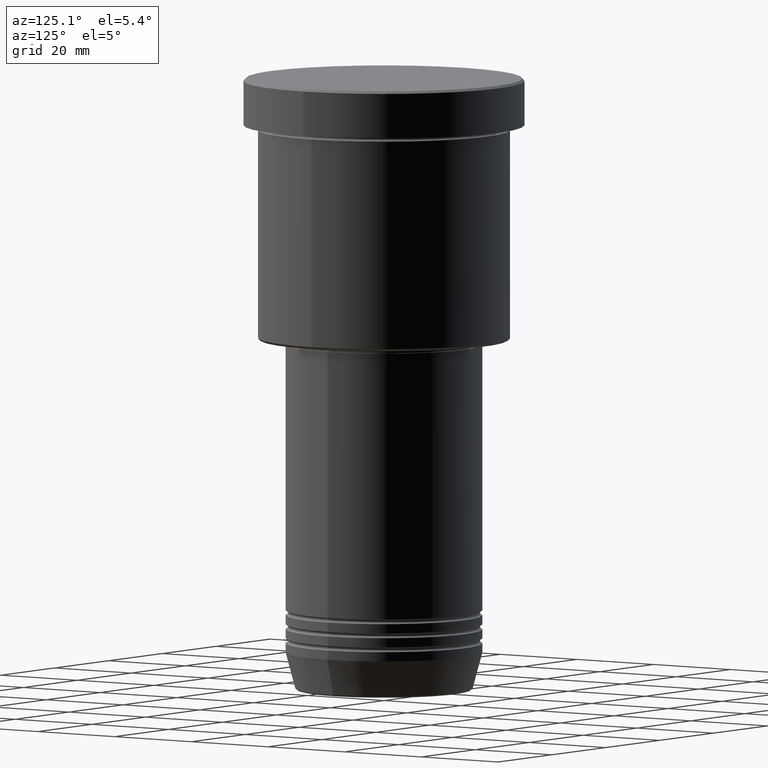
[diagram: clean part render]
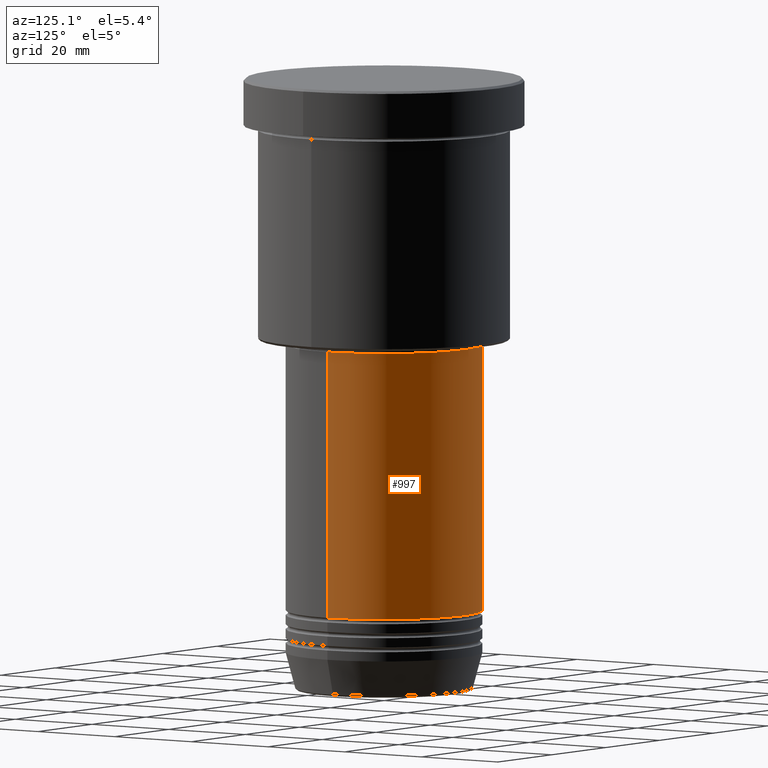
[diagram: same view with one face highlighted and labeled with its STEP entity id]
A machine part, auxiliary view. The second image highlights one B-rep face of the part: STEP entity #997.
In plain terms, the highlighted cylindrical surface (partial cylindrical patch) has radius 21 mm, axis along (-0, -0, 1).
Its self-contained STEP definition (entity closure, byte-faithful):
#26 = AXIS2_PLACEMENT_3D ( 'NONE', #825, #1094, #373 ) ;
#42 = DIRECTION ( 'NONE',  ( -0.000000000000000000, -0.000000000000000000, 1.000000000000000000 ) ) ;
#51 = VERTEX_POINT ( 'NONE', #323 ) ;
#68 = AXIS2_PLACEMENT_3D ( 'NONE', #303, #292, #1012 ) ;
#84 = ORIENTED_EDGE ( 'NONE', *, *, #388, .F. ) ;
#245 = DIRECTION ( 'NONE',  ( -0.000000000000000000, -0.000000000000000000, 1.000000000000000000 ) ) ;
#292 = DIRECTION ( 'NONE',  ( -0.000000000000000000, -0.000000000000000000, 1.000000000000000000 ) ) ;
#303 = CARTESIAN_POINT ( 'NONE',  ( 0.000000000000000000, 0.000000000000000000, -113.9999999999999574 ) ) ;
#310 = LINE ( 'NONE', #948, #933 ) ;
#315 = VERTEX_POINT ( 'NONE', #1151 ) ;
#323 = CARTESIAN_POINT ( 'NONE',  ( 21.00000000000000000, 0.000000000000000000, -113.9999999999999574 ) ) ;
#340 = LINE ( 'NONE', #608, #1130 ) ;
#373 = DIRECTION ( 'NONE',  ( 1.000000000000000000, 0.000000000000000000, 0.000000000000000000 ) ) ;
#388 = EDGE_CURVE ( 'NONE', #315, #724, #592, .T. ) ;
#403 = CARTESIAN_POINT ( 'NONE',  ( -21.00000000000000000, 2.571758278209441661E-15, -113.9999999999999574 ) ) ;
#460 = CYLINDRICAL_SURFACE ( 'NONE', #26, 21.00000000000000000 ) ;
#492 = EDGE_CURVE ( 'NONE', #51, #315, #340, .T. ) ;
#501 = ORIENTED_EDGE ( 'NONE', *, *, #860, .T. ) ;
#592 = CIRCLE ( 'NONE', #1028, 21.00000000000000000 ) ;
#599 = ORIENTED_EDGE ( 'NONE', *, *, #912, .T. ) ;
#608 = CARTESIAN_POINT ( 'NONE',  ( 21.00000000000000000, 0.000000000000000000, 0.000000000000000000 ) ) ;
#684 = DIRECTION ( 'NONE',  ( 1.000000000000000000, 0.000000000000000000, 0.000000000000000000 ) ) ;
#724 = VERTEX_POINT ( 'NONE', #944 ) ;
#825 = CARTESIAN_POINT ( 'NONE',  ( 0.000000000000000000, 0.000000000000000000, 0.000000000000000000 ) ) ;
#833 = CIRCLE ( 'NONE', #68, 21.00000000000000000 ) ;
#839 = ORIENTED_EDGE ( 'NONE', *, *, #492, .F. ) ;
#860 = EDGE_CURVE ( 'NONE', #51, #937, #833, .T. ) ;
#869 = CARTESIAN_POINT ( 'NONE',  ( 0.000000000000000000, 0.000000000000000000, -57.00000000000000000 ) ) ;
#912 = EDGE_CURVE ( 'NONE', #937, #724, #310, .T. ) ;
#933 = VECTOR ( 'NONE', #1109, 1000.000000000000000 ) ;
#937 = VERTEX_POINT ( 'NONE', #403 ) ;
#944 = CARTESIAN_POINT ( 'NONE',  ( -21.00000000000000000, 2.571758278209441661E-15, -57.00000000000000000 ) ) ;
#948 = CARTESIAN_POINT ( 'NONE',  ( -21.00000000000000000, 2.571758278209441661E-15, 0.000000000000000000 ) ) ;
#997 = ADVANCED_FACE ( 'NONE', ( #1181 ), #460, .T. ) ;
#1012 = DIRECTION ( 'NONE',  ( 1.000000000000000000, 0.000000000000000000, 0.000000000000000000 ) ) ;
#1028 = AXIS2_PLACEMENT_3D ( 'NONE', #869, #42, #684 ) ;
#1094 = DIRECTION ( 'NONE',  ( -0.000000000000000000, -0.000000000000000000, 1.000000000000000000 ) ) ;
#1109 = DIRECTION ( 'NONE',  ( -0.000000000000000000, -0.000000000000000000, 1.000000000000000000 ) ) ;
#1130 = VECTOR ( 'NONE', #245, 1000.000000000000000 ) ;
#1151 = CARTESIAN_POINT ( 'NONE',  ( 21.00000000000000000, 0.000000000000000000, -57.00000000000000000 ) ) ;
#1155 = EDGE_LOOP ( 'NONE', ( #501, #599, #84, #839 ) ) ;
#1181 = FACE_OUTER_BOUND ( 'NONE', #1155, .T. ) ;